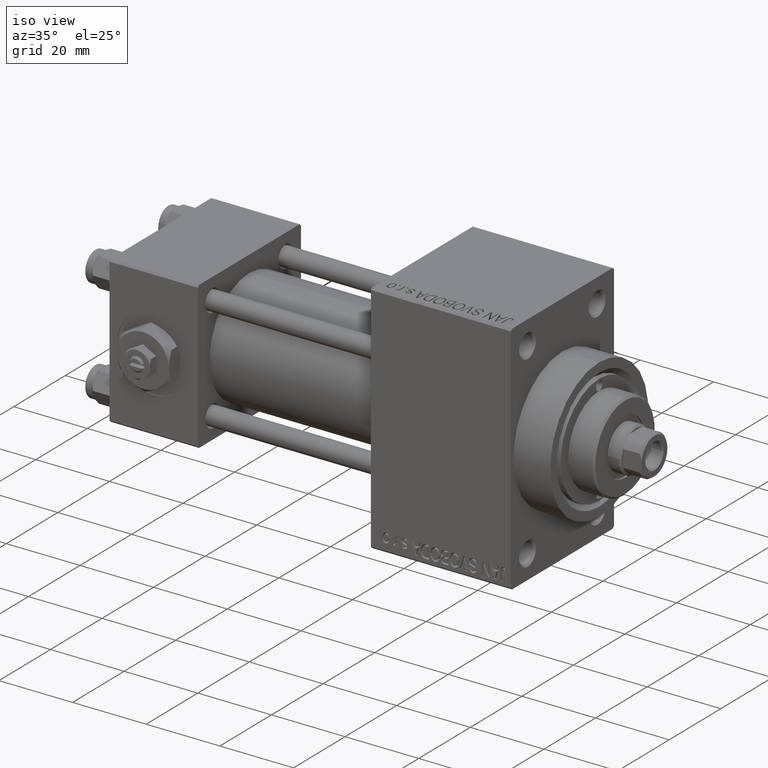
[diagram: clean part render]
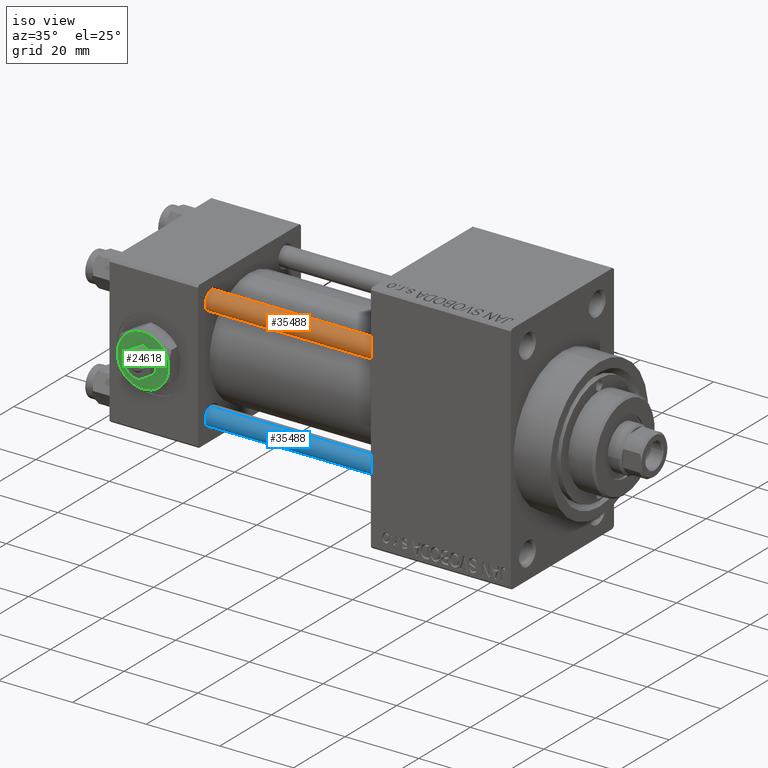
[diagram: same view with three faces highlighted in distinct colors, each labeled with its STEP entity id]
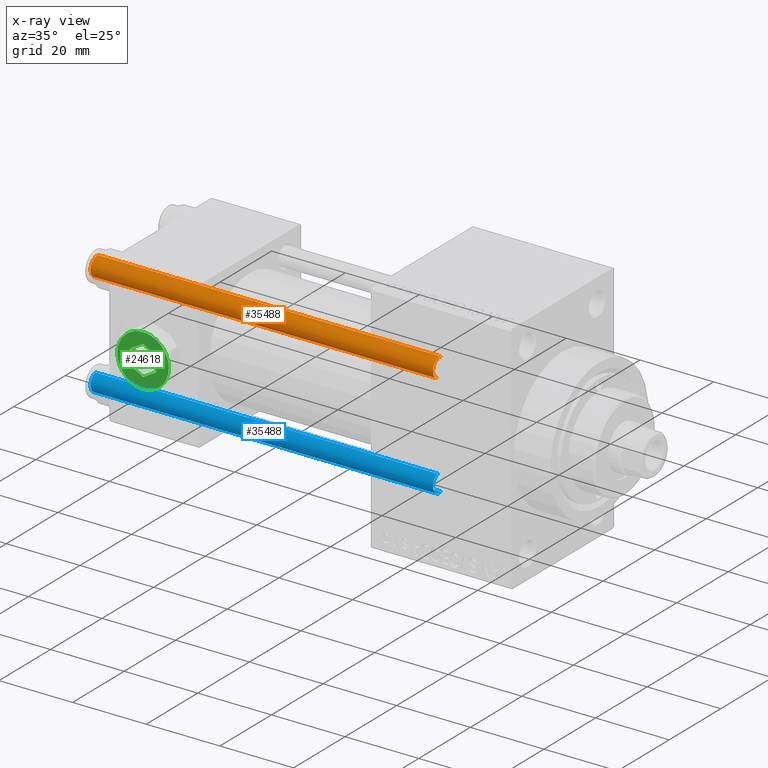
[diagram: x-ray of the same camera — body ghosted, the three highlighted faces saturated]
A machine part, iso view with three faces highlighted in distinct colors.
The next image is the same camera in x-ray (body ghosted, the three faces saturated) — at least one of them is partly hidden behind the body in this view.
Their STEP definitions:

[orange] entity #35488 — the highlighted cylindrical surface (edge-blend (fillet) strip) has radius 2.5 mm, axis along (1, 0, 0).
#1608 = ORIENTED_EDGE ( 'NONE', *, *, #40694, .T. ) ;
#6025 = CIRCLE ( 'NONE', #12367, 2.500000000000000000 ) ;
#7088 = AXIS2_PLACEMENT_3D ( 'NONE', #37353, #21740, #36859 ) ;
#11355 = ORIENTED_EDGE ( 'NONE', *, *, #43698, .F. ) ;
#11936 = VECTOR ( 'NONE', #44163, 1000.000000000000000 ) ;
#12367 = AXIS2_PLACEMENT_3D ( 'NONE', #36014, #20638, #13715 ) ;
#13715 = DIRECTION ( 'NONE',  ( 1.000000000000000000, 0.000000000000000000, 0.000000000000000000 ) ) ;
#14792 = DIRECTION ( 'NONE',  ( 0.000000000000000000, 0.000000000000000000, -1.000000000000000000 ) ) ;
#16113 = VERTEX_POINT ( 'NONE', #27722 ) ;
#16238 = ORIENTED_EDGE ( 'NONE', *, *, #41968, .T. ) ;
#16904 = CARTESIAN_POINT ( 'NONE',  ( 2.500000000000000000, 3.061616997868383141E-16, 94.00000000000000000 ) ) ;
#18977 = ORIENTED_EDGE ( 'NONE', *, *, #28264, .T. ) ;
#19171 = VERTEX_POINT ( 'NONE', #37315 ) ;
#19185 = VERTEX_POINT ( 'NONE', #41275 ) ;
#19861 = VERTEX_POINT ( 'NONE', #26167 ) ;
#20638 = DIRECTION ( 'NONE',  ( -0.000000000000000000, -0.000000000000000000, 1.000000000000000000 ) ) ;
#21367 = CIRCLE ( 'NONE', #37232, 2.500000000000000000 ) ;
#21740 = DIRECTION ( 'NONE',  ( -0.000000000000000000, -0.000000000000000000, -1.000000000000000000 ) ) ;
#22234 = CYLINDRICAL_SURFACE ( 'NONE', #7088, 2.500000000000000000 ) ;
#26167 = CARTESIAN_POINT ( 'NONE',  ( -2.500000000000000000, 0.000000000000000000, 0.5000000000000004441 ) ) ;
#27722 = CARTESIAN_POINT ( 'NONE',  ( 2.500000000000000000, 3.061616997868383141E-16, 0.5000000000000004441 ) ) ;
#28264 = EDGE_CURVE ( 'NONE', #16113, #19861, #6025, .T. ) ;
#28520 = LINE ( 'NONE', #16904, #41923 ) ;
#30370 = EDGE_LOOP ( 'NONE', ( #1608, #16238, #18977, #11355 ) ) ;
#35488 = ADVANCED_FACE ( 'NONE', ( #40564 ), #22234, .T. ) ;
#36014 = CARTESIAN_POINT ( 'NONE',  ( 0.000000000000000000, 0.000000000000000000, 0.5000000000000004441 ) ) ;
#36859 = DIRECTION ( 'NONE',  ( -1.000000000000000000, 0.000000000000000000, 0.000000000000000000 ) ) ;
#37232 = AXIS2_PLACEMENT_3D ( 'NONE', #45471, #14792, #41274 ) ;
#37315 = CARTESIAN_POINT ( 'NONE',  ( 2.500000000000000000, 3.061616997868383141E-16, 93.50000000000001421 ) ) ;
#37353 = CARTESIAN_POINT ( 'NONE',  ( 0.000000000000000000, 0.000000000000000000, 94.00000000000000000 ) ) ;
#39928 = DIRECTION ( 'NONE',  ( -0.000000000000000000, -0.000000000000000000, -1.000000000000000000 ) ) ;
#40564 = FACE_OUTER_BOUND ( 'NONE', #30370, .T. ) ;
#40694 = EDGE_CURVE ( 'NONE', #19185, #19171, #21367, .T. ) ;
#40708 = CARTESIAN_POINT ( 'NONE',  ( -2.500000000000000000, 0.000000000000000000, 94.00000000000000000 ) ) ;
#41274 = DIRECTION ( 'NONE',  ( 1.000000000000000000, 0.000000000000000000, 0.000000000000000000 ) ) ;
#41275 = CARTESIAN_POINT ( 'NONE',  ( -2.500000000000000000, 0.000000000000000000, 93.50000000000001421 ) ) ;
#41923 = VECTOR ( 'NONE', #39928, 1000.000000000000000 ) ;
#41968 = EDGE_CURVE ( 'NONE', #19171, #16113, #28520, .T. ) ;
#43698 = EDGE_CURVE ( 'NONE', #19185, #19861, #48129, .T. ) ;
#44163 = DIRECTION ( 'NONE',  ( -0.000000000000000000, -0.000000000000000000, -1.000000000000000000 ) ) ;
#45471 = CARTESIAN_POINT ( 'NONE',  ( 0.000000000000000000, 0.000000000000000000, 93.50000000000001421 ) ) ;
#48129 = LINE ( 'NONE', #40708, #11936 ) ;

[blue] entity #35488 — the highlighted cylindrical surface (edge-blend (fillet) strip) has radius 2.5 mm, axis along (-1, 0, 0).
#1608 = ORIENTED_EDGE ( 'NONE', *, *, #40694, .T. ) ;
#6025 = CIRCLE ( 'NONE', #12367, 2.500000000000000000 ) ;
#7088 = AXIS2_PLACEMENT_3D ( 'NONE', #37353, #21740, #36859 ) ;
#11355 = ORIENTED_EDGE ( 'NONE', *, *, #43698, .F. ) ;
#11936 = VECTOR ( 'NONE', #44163, 1000.000000000000000 ) ;
#12367 = AXIS2_PLACEMENT_3D ( 'NONE', #36014, #20638, #13715 ) ;
#13715 = DIRECTION ( 'NONE',  ( 1.000000000000000000, 0.000000000000000000, 0.000000000000000000 ) ) ;
#14792 = DIRECTION ( 'NONE',  ( 0.000000000000000000, 0.000000000000000000, -1.000000000000000000 ) ) ;
#16113 = VERTEX_POINT ( 'NONE', #27722 ) ;
#16238 = ORIENTED_EDGE ( 'NONE', *, *, #41968, .T. ) ;
#16904 = CARTESIAN_POINT ( 'NONE',  ( 2.500000000000000000, 3.061616997868383141E-16, 94.00000000000000000 ) ) ;
#18977 = ORIENTED_EDGE ( 'NONE', *, *, #28264, .T. ) ;
#19171 = VERTEX_POINT ( 'NONE', #37315 ) ;
#19185 = VERTEX_POINT ( 'NONE', #41275 ) ;
#19861 = VERTEX_POINT ( 'NONE', #26167 ) ;
#20638 = DIRECTION ( 'NONE',  ( -0.000000000000000000, -0.000000000000000000, 1.000000000000000000 ) ) ;
#21367 = CIRCLE ( 'NONE', #37232, 2.500000000000000000 ) ;
#21740 = DIRECTION ( 'NONE',  ( -0.000000000000000000, -0.000000000000000000, -1.000000000000000000 ) ) ;
#22234 = CYLINDRICAL_SURFACE ( 'NONE', #7088, 2.500000000000000000 ) ;
#26167 = CARTESIAN_POINT ( 'NONE',  ( -2.500000000000000000, 0.000000000000000000, 0.5000000000000004441 ) ) ;
#27722 = CARTESIAN_POINT ( 'NONE',  ( 2.500000000000000000, 3.061616997868383141E-16, 0.5000000000000004441 ) ) ;
#28264 = EDGE_CURVE ( 'NONE', #16113, #19861, #6025, .T. ) ;
#28520 = LINE ( 'NONE', #16904, #41923 ) ;
#30370 = EDGE_LOOP ( 'NONE', ( #1608, #16238, #18977, #11355 ) ) ;
#35488 = ADVANCED_FACE ( 'NONE', ( #40564 ), #22234, .T. ) ;
#36014 = CARTESIAN_POINT ( 'NONE',  ( 0.000000000000000000, 0.000000000000000000, 0.5000000000000004441 ) ) ;
#36859 = DIRECTION ( 'NONE',  ( -1.000000000000000000, 0.000000000000000000, 0.000000000000000000 ) ) ;
#37232 = AXIS2_PLACEMENT_3D ( 'NONE', #45471, #14792, #41274 ) ;
#37315 = CARTESIAN_POINT ( 'NONE',  ( 2.500000000000000000, 3.061616997868383141E-16, 93.50000000000001421 ) ) ;
#37353 = CARTESIAN_POINT ( 'NONE',  ( 0.000000000000000000, 0.000000000000000000, 94.00000000000000000 ) ) ;
#39928 = DIRECTION ( 'NONE',  ( -0.000000000000000000, -0.000000000000000000, -1.000000000000000000 ) ) ;
#40564 = FACE_OUTER_BOUND ( 'NONE', #30370, .T. ) ;
#40694 = EDGE_CURVE ( 'NONE', #19185, #19171, #21367, .T. ) ;
#40708 = CARTESIAN_POINT ( 'NONE',  ( -2.500000000000000000, 0.000000000000000000, 94.00000000000000000 ) ) ;
#41274 = DIRECTION ( 'NONE',  ( 1.000000000000000000, 0.000000000000000000, 0.000000000000000000 ) ) ;
#41275 = CARTESIAN_POINT ( 'NONE',  ( -2.500000000000000000, 0.000000000000000000, 93.50000000000001421 ) ) ;
#41923 = VECTOR ( 'NONE', #39928, 1000.000000000000000 ) ;
#41968 = EDGE_CURVE ( 'NONE', #19171, #16113, #28520, .T. ) ;
#43698 = EDGE_CURVE ( 'NONE', #19185, #19861, #48129, .T. ) ;
#44163 = DIRECTION ( 'NONE',  ( -0.000000000000000000, -0.000000000000000000, -1.000000000000000000 ) ) ;
#45471 = CARTESIAN_POINT ( 'NONE',  ( 0.000000000000000000, 0.000000000000000000, 93.50000000000001421 ) ) ;
#48129 = LINE ( 'NONE', #40708, #11936 ) ;

[green] entity #24618 — the highlighted planar face has unit normal (0, -1, -0).
#425 = AXIS2_PLACEMENT_3D ( 'NONE', #12957, #15936, #20599 ) ;
#511 = VERTEX_POINT ( 'NONE', #32553 ) ;
#794 = CARTESIAN_POINT ( 'NONE',  ( 0.000000000000000000, 0.000000000000000000, 4.299999999999999822 ) ) ;
#1535 = FACE_BOUND ( 'NONE', #6230, .T. ) ;
#1779 = CARTESIAN_POINT ( 'NONE',  ( 0.000000000000000000, 0.000000000000000000, 4.299999999999999822 ) ) ;
#3279 = LINE ( 'NONE', #25539, #42873 ) ;
#4025 = AXIS2_PLACEMENT_3D ( 'NONE', #7848, #48953, #11568 ) ;
#4348 = AXIS2_PLACEMENT_3D ( 'NONE', #1779, #23809, #24288 ) ;
#4697 = ORIENTED_EDGE ( 'NONE', *, *, #47357, .F. ) ;
#4864 = ORIENTED_EDGE ( 'NONE', *, *, #7457, .F. ) ;
#5074 = EDGE_CURVE ( 'NONE', #42167, #30868, #27920, .T. ) ;
#5152 = VERTEX_POINT ( 'NONE', #36174 ) ;
#5918 = CIRCLE ( 'NONE', #33620, 7.000000000000001776 ) ;
#6230 = EDGE_LOOP ( 'NONE', ( #40985, #45872, #4864, #19583, #4697, #7644 ) ) ;
#6684 = VERTEX_POINT ( 'NONE', #45369 ) ;
#7189 = CIRCLE ( 'NONE', #12683, 7.000000000000001776 ) ;
#7286 = VERTEX_POINT ( 'NONE', #45248 ) ;
#7457 = EDGE_CURVE ( 'NONE', #25477, #47187, #41169, .T. ) ;
#7644 = ORIENTED_EDGE ( 'NONE', *, *, #11773, .F. ) ;
#7848 = CARTESIAN_POINT ( 'NONE',  ( 0.000000000000000000, 0.000000000000000000, 4.299999999999999822 ) ) ;
#7949 = CARTESIAN_POINT ( 'NONE',  ( 0.000000000000000000, 0.000000000000000000, 4.299999999999999822 ) ) ;
#8572 = CARTESIAN_POINT ( 'NONE',  ( 0.000000000000000000, 0.000000000000000000, 4.299999999999999822 ) ) ;
#8986 = PLANE ( 'NONE',  #4348 ) ;
#10627 = VECTOR ( 'NONE', #40924, 1000.000000000000000 ) ;
#10680 = CIRCLE ( 'NONE', #425, 7.000000000000001776 ) ;
#10811 = LINE ( 'NONE', #47926, #41024 ) ;
#11008 = DIRECTION ( 'NONE',  ( 0.000000000000000000, 0.000000000000000000, 1.000000000000000000 ) ) ;
#11249 = ORIENTED_EDGE ( 'NONE', *, *, #25533, .T. ) ;
#11568 = DIRECTION ( 'NONE',  ( 1.000000000000000000, 0.000000000000000000, 0.000000000000000000 ) ) ;
#11588 = EDGE_CURVE ( 'NONE', #30868, #32790, #7189, .T. ) ;
#11773 = EDGE_CURVE ( 'NONE', #6684, #29276, #24599, .T. ) ;
#12442 = CARTESIAN_POINT ( 'NONE',  ( -3.499999999999998668, -2.020725942163689837, 4.299999999999999822 ) ) ;
#12667 = DIRECTION ( 'NONE',  ( 0.000000000000000000, 0.000000000000000000, 1.000000000000000000 ) ) ;
#12683 = AXIS2_PLACEMENT_3D ( 'NONE', #8572, #33841, #19202 ) ;
#12851 = EDGE_CURVE ( 'NONE', #5152, #25477, #27520, .T. ) ;
#12957 = CARTESIAN_POINT ( 'NONE',  ( 0.000000000000000000, 0.000000000000000000, 4.299999999999999822 ) ) ;
#13671 = CARTESIAN_POINT ( 'NONE',  ( 6.999999999999994671, 3.004629197474313724E-15, 4.299999999999999822 ) ) ;
#14471 = CARTESIAN_POINT ( 'NONE',  ( 3.499999999999998224, 2.020725942163691613, 4.299999999999999822 ) ) ;
#15252 = CARTESIAN_POINT ( 'NONE',  ( -7.000000000000001776, -2.253471898105739040E-15, 4.299999999999999822 ) ) ;
#15338 = AXIS2_PLACEMENT_3D ( 'NONE', #794, #12667, #39153 ) ;
#15936 = DIRECTION ( 'NONE',  ( 0.000000000000000000, 0.000000000000000000, 1.000000000000000000 ) ) ;
#19087 = LINE ( 'NONE', #34208, #37704 ) ;
#19202 = DIRECTION ( 'NONE',  ( 1.000000000000000000, 0.000000000000000000, 0.000000000000000000 ) ) ;
#19583 = ORIENTED_EDGE ( 'NONE', *, *, #12851, .F. ) ;
#19790 = DIRECTION ( 'NONE',  ( 1.000000000000000000, 0.000000000000000000, 0.000000000000000000 ) ) ;
#20599 = DIRECTION ( 'NONE',  ( 1.000000000000000000, 0.000000000000000000, 0.000000000000000000 ) ) ;
#20920 = CARTESIAN_POINT ( 'NONE',  ( 3.499999999999999556, -2.020725942163690281, 4.299999999999999822 ) ) ;
#21101 = AXIS2_PLACEMENT_3D ( 'NONE', #7949, #23018, #19790 ) ;
#21653 = EDGE_CURVE ( 'NONE', #46714, #511, #10680, .T. ) ;
#21710 = VERTEX_POINT ( 'NONE', #13671 ) ;
#22179 = VECTOR ( 'NONE', #35524, 1000.000000000000000 ) ;
#22973 = CIRCLE ( 'NONE', #4025, 7.000000000000001776 ) ;
#23018 = DIRECTION ( 'NONE',  ( 0.000000000000000000, 0.000000000000000000, 1.000000000000000000 ) ) ;
#23022 = VECTOR ( 'NONE', #27761, 1000.000000000000114 ) ;
#23033 = ORIENTED_EDGE ( 'NONE', *, *, #21653, .T. ) ;
#23039 = DIRECTION ( 'NONE',  ( -0.8660254037844387076, 0.4999999999999998335, 0.000000000000000000 ) ) ;
#23809 = DIRECTION ( 'NONE',  ( 0.000000000000000000, 0.000000000000000000, 1.000000000000000000 ) ) ;
#24288 = DIRECTION ( 'NONE',  ( 1.000000000000000000, 0.000000000000000000, -0.000000000000000000 ) ) ;
#24599 = LINE ( 'NONE', #39240, #22179 ) ;
#24618 = ADVANCED_FACE ( 'NONE', ( #38682, #1535 ), #8986, .T. ) ;
#25477 = VERTEX_POINT ( 'NONE', #33530 ) ;
#25533 = EDGE_CURVE ( 'NONE', #511, #21710, #5918, .T. ) ;
#25539 = CARTESIAN_POINT ( 'NONE',  ( -3.499999999999998668, -2.020725942163689837, 4.299999999999999822 ) ) ;
#26894 = EDGE_LOOP ( 'NONE', ( #11249, #40239, #41273, #27085, #33363, #23033 ) ) ;
#27085 = ORIENTED_EDGE ( 'NONE', *, *, #11588, .T. ) ;
#27520 = LINE ( 'NONE', #42626, #23022 ) ;
#27761 = DIRECTION ( 'NONE',  ( 0.8660254037844388186, 0.4999999999999996669, 0.000000000000000000 ) ) ;
#27920 = CIRCLE ( 'NONE', #15338, 7.000000000000001776 ) ;
#28461 = EDGE_CURVE ( 'NONE', #47187, #7286, #19087, .T. ) ;
#29276 = VERTEX_POINT ( 'NONE', #12442 ) ;
#29607 = EDGE_CURVE ( 'NONE', #32790, #46714, #40876, .T. ) ;
#30121 = CARTESIAN_POINT ( 'NONE',  ( -3.500000000000000888, 6.062177826491073063, 4.299999999999999822 ) ) ;
#30868 = VERTEX_POINT ( 'NONE', #30121 ) ;
#32553 = CARTESIAN_POINT ( 'NONE',  ( 3.500000000000000888, -6.062177826491073951, 4.299999999999999822 ) ) ;
#32628 = EDGE_CURVE ( 'NONE', #7286, #6684, #10811, .T. ) ;
#32790 = VERTEX_POINT ( 'NONE', #15252 ) ;
#33032 = DIRECTION ( 'NONE',  ( 1.000000000000000000, 0.000000000000000000, 0.000000000000000000 ) ) ;
#33275 = CARTESIAN_POINT ( 'NONE',  ( 0.000000000000000000, 0.000000000000000000, 4.299999999999999822 ) ) ;
#33363 = ORIENTED_EDGE ( 'NONE', *, *, #29607, .T. ) ;
#33530 = CARTESIAN_POINT ( 'NONE',  ( 3.500000000000000000, -2.020725942163690281, 4.299999999999999822 ) ) ;
#33620 = AXIS2_PLACEMENT_3D ( 'NONE', #33275, #11008, #33032 ) ;
#33841 = DIRECTION ( 'NONE',  ( 0.000000000000000000, 0.000000000000000000, 1.000000000000000000 ) ) ;
#34208 = CARTESIAN_POINT ( 'NONE',  ( 3.499999999999998224, 2.020725942163691613, 4.299999999999999822 ) ) ;
#35524 = DIRECTION ( 'NONE',  ( 1.073081856240828196E-16, -1.000000000000000000, 0.000000000000000000 ) ) ;
#36174 = CARTESIAN_POINT ( 'NONE',  ( -2.443687887572056883E-16, -4.041451884327378785, 4.299999999999999822 ) ) ;
#37704 = VECTOR ( 'NONE', #23039, 1000.000000000000114 ) ;
#38656 = CARTESIAN_POINT ( 'NONE',  ( 3.500000000000000444, 6.062177826491073063, 4.299999999999999822 ) ) ;
#38682 = FACE_OUTER_BOUND ( 'NONE', #26894, .T. ) ;
#39153 = DIRECTION ( 'NONE',  ( 1.000000000000000000, 0.000000000000000000, 0.000000000000000000 ) ) ;
#39240 = CARTESIAN_POINT ( 'NONE',  ( -3.499999999999999112, 2.020725942163690725, 4.299999999999999822 ) ) ;
#40239 = ORIENTED_EDGE ( 'NONE', *, *, #40752, .T. ) ;
#40752 = EDGE_CURVE ( 'NONE', #21710, #42167, #22973, .T. ) ;
#40876 = CIRCLE ( 'NONE', #21101, 7.000000000000001776 ) ;
#40924 = DIRECTION ( 'NONE',  ( -3.219245568722483357E-16, 1.000000000000000000, 0.000000000000000000 ) ) ;
#40985 = ORIENTED_EDGE ( 'NONE', *, *, #32628, .F. ) ;
#41024 = VECTOR ( 'NONE', #41243, 1000.000000000000227 ) ;
#41169 = LINE ( 'NONE', #20920, #10627 ) ;
#41243 = DIRECTION ( 'NONE',  ( -0.8660254037844385966, -0.4999999999999998890, 0.000000000000000000 ) ) ;
#41273 = ORIENTED_EDGE ( 'NONE', *, *, #5074, .T. ) ;
#42167 = VERTEX_POINT ( 'NONE', #38656 ) ;
#42626 = CARTESIAN_POINT ( 'NONE',  ( -2.443687887572056883E-16, -4.041451884327378785, 4.299999999999999822 ) ) ;
#42873 = VECTOR ( 'NONE', #48083, 1000.000000000000227 ) ;
#44490 = CARTESIAN_POINT ( 'NONE',  ( -3.500000000000000000, -6.062177826491073063, 4.299999999999999822 ) ) ;
#45248 = CARTESIAN_POINT ( 'NONE',  ( 0.000000000000000000, 4.041451884327380562, 4.299999999999999822 ) ) ;
#45369 = CARTESIAN_POINT ( 'NONE',  ( -3.499999999999999112, 2.020725942163690725, 4.299999999999999822 ) ) ;
#45872 = ORIENTED_EDGE ( 'NONE', *, *, #28461, .F. ) ;
#46714 = VERTEX_POINT ( 'NONE', #44490 ) ;
#47187 = VERTEX_POINT ( 'NONE', #14471 ) ;
#47357 = EDGE_CURVE ( 'NONE', #29276, #5152, #3279, .T. ) ;
#47926 = CARTESIAN_POINT ( 'NONE',  ( 0.000000000000000000, 4.041451884327380562, 4.299999999999999822 ) ) ;
#48083 = DIRECTION ( 'NONE',  ( 0.8660254037844385966, -0.4999999999999998890, 0.000000000000000000 ) ) ;
#48953 = DIRECTION ( 'NONE',  ( 0.000000000000000000, 0.000000000000000000, 1.000000000000000000 ) ) ;